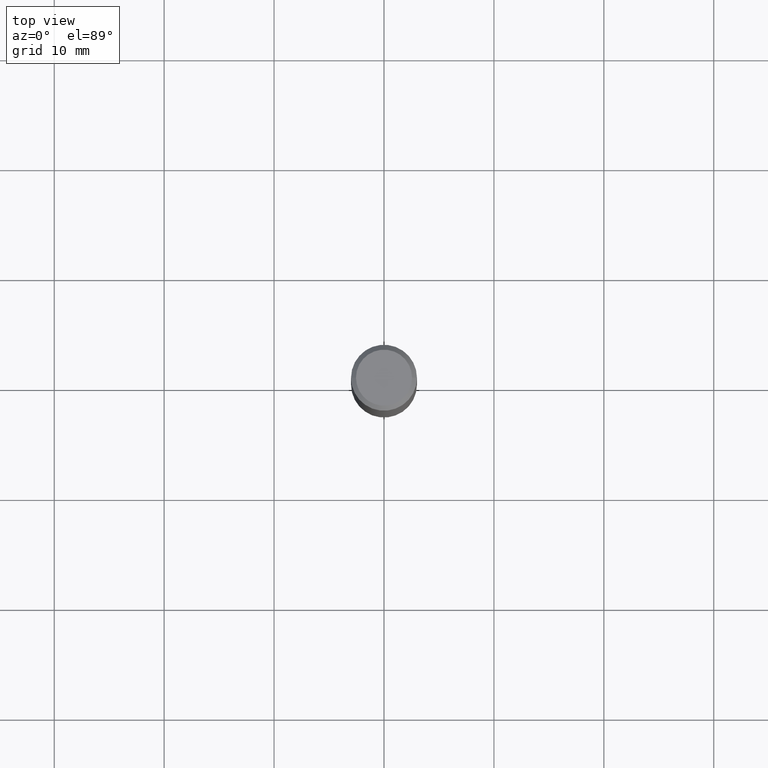
[diagram: clean part render]
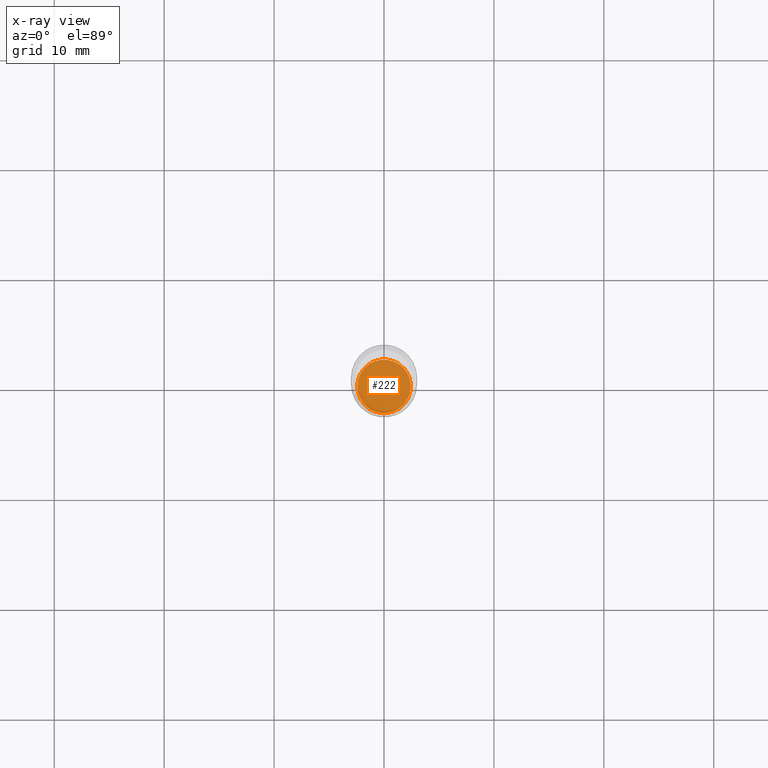
[diagram: x-ray — body ghosted, one internal face saturated and labeled with its STEP entity id]
A machine part, top view, then the same camera in x-ray: the body is ghosted and one INTERNAL B-rep face — a face not visible from any outside direction — is saturated and labeled: STEP entity #222.
In plain terms, the highlighted planar face has unit normal (-0, 0, 1).
Its self-contained STEP definition (entity closure, byte-faithful):
#16 = PLANE ( 'NONE',  #21 ) ;
#21 = AXIS2_PLACEMENT_3D ( 'NONE', #353, #295, #465 ) ;
#27 = DIRECTION ( 'NONE',  ( -2.445468806185136597E-29, 3.491481338843145583E-15, 1.000000000000000000 ) ) ;
#61 = CARTESIAN_POINT ( 'NONE',  ( 0.09594999999999997975, -6.993087973568933519E-15, -1.810999999999999943 ) ) ;
#69 = DIRECTION ( 'NONE',  ( 1.000000000000000000, -6.982962677686269866E-15, 0.000000000000000000 ) ) ;
#88 = CIRCLE ( 'NONE', #433, 0.09594999999999997975 ) ;
#106 = EDGE_CURVE ( 'NONE', #338, #245, #389, .T. ) ;
#160 = ORIENTED_EDGE ( 'NONE', *, *, #106, .F. ) ;
#167 = ORIENTED_EDGE ( 'NONE', *, *, #479, .F. ) ;
#188 = CARTESIAN_POINT ( 'NONE',  ( 4.428744008001282238E-29, -6.323072704644935995E-15, -1.810999999999999943 ) ) ;
#189 = DIRECTION ( 'NONE',  ( 1.000000000000000000, -6.982962677686269866E-15, 0.000000000000000000 ) ) ;
#222 = ADVANCED_FACE ( 'NONE', ( #321 ), #16, .F. ) ;
#245 = VERTEX_POINT ( 'NONE', #392 ) ;
#274 = AXIS2_PLACEMENT_3D ( 'NONE', #188, #334, #69 ) ;
#295 = DIRECTION ( 'NONE',  ( -2.438088387897960049E-29, 3.491481338843145188E-15, 1.000000000000000000 ) ) ;
#320 = EDGE_LOOP ( 'NONE', ( #160, #167 ) ) ;
#321 = FACE_OUTER_BOUND ( 'NONE', #320, .T. ) ;
#334 = DIRECTION ( 'NONE',  ( -2.445468806185136597E-29, 3.491481338843145583E-15, 1.000000000000000000 ) ) ;
#338 = VERTEX_POINT ( 'NONE', #61 ) ;
#353 = CARTESIAN_POINT ( 'NONE',  ( 4.428744008001282238E-29, -6.323072704644935995E-15, -1.810999999999999943 ) ) ;
#389 = CIRCLE ( 'NONE', #274, 0.09594999999999997975 ) ;
#392 = CARTESIAN_POINT ( 'NONE',  ( -0.09594999999999997975, -5.638657722509008809E-15, -1.810999999999999943 ) ) ;
#403 = CARTESIAN_POINT ( 'NONE',  ( 4.428744008001282238E-29, -6.323072704644935995E-15, -1.810999999999999943 ) ) ;
#433 = AXIS2_PLACEMENT_3D ( 'NONE', #403, #27, #189 ) ;
#465 = DIRECTION ( 'NONE',  ( 1.000000000000000000, -6.982962677686265922E-15, 4.876176775795935793E-29 ) ) ;
#479 = EDGE_CURVE ( 'NONE', #245, #338, #88, .T. ) ;